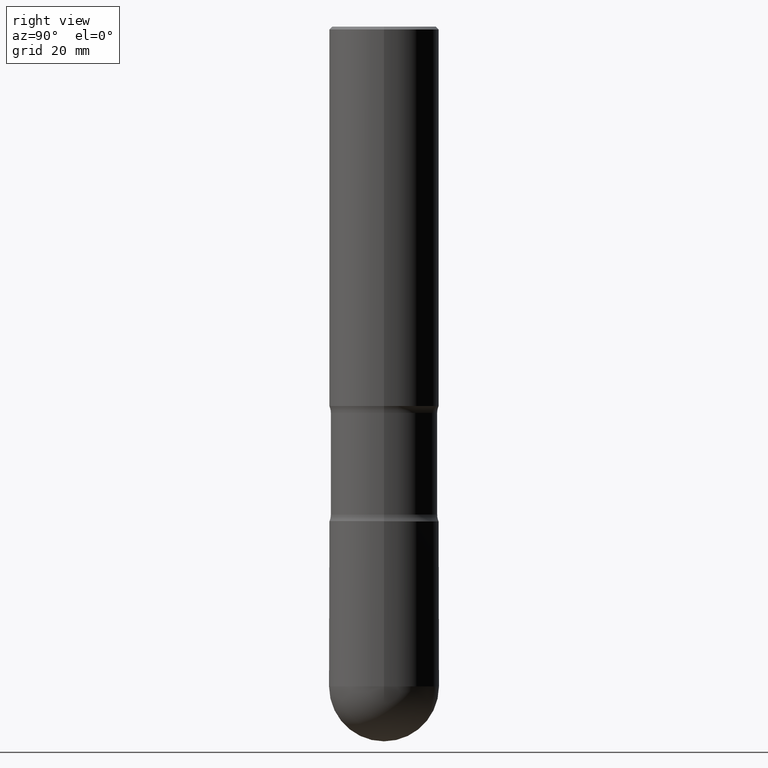
[diagram: clean part render]
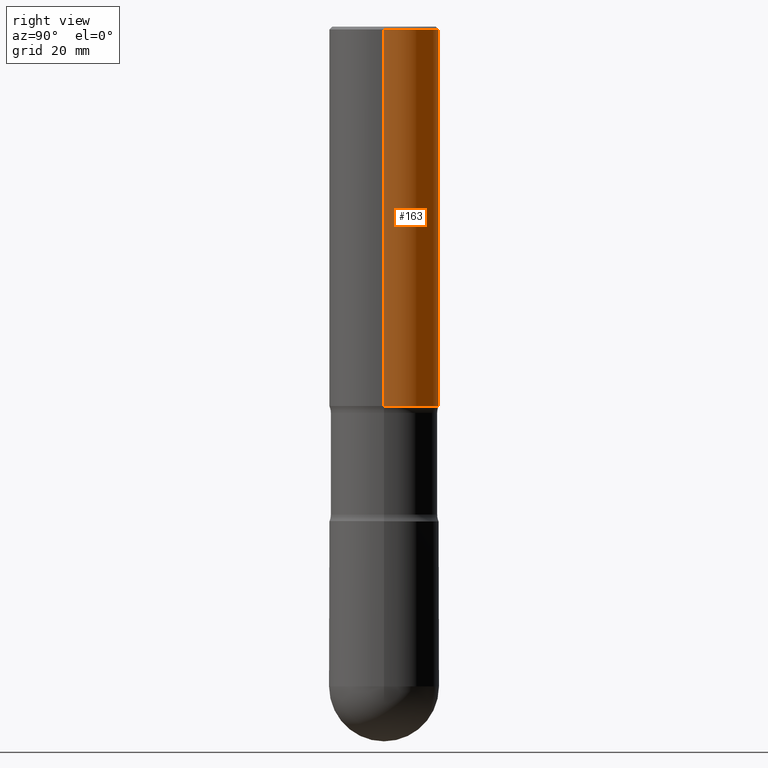
[diagram: same view with one face highlighted and labeled with its STEP entity id]
A machine part, right view. The second image highlights one B-rep face of the part: STEP entity #163.
In plain terms, the highlighted cylindrical surface (partial cylindrical patch) has radius 10 mm, axis along (0, -0, -1).
Its self-contained STEP definition (entity closure, byte-faithful):
#3 = FACE_OUTER_BOUND ( 'NONE', #158, .T. ) ;
#11 = EDGE_CURVE ( 'NONE', #360, #491, #340, .T. ) ;
#33 = CYLINDRICAL_SURFACE ( 'NONE', #324, 0.3936999999999998279 ) ;
#54 = CARTESIAN_POINT ( 'NONE',  ( -0.3936999999999996613, 2.679362779428216763E-15, -0.02000000000000033348 ) ) ;
#73 = EDGE_CURVE ( 'NONE', #423, #360, #276, .T. ) ;
#92 = AXIS2_PLACEMENT_3D ( 'NONE', #375, #462, #327 ) ;
#99 = EDGE_CURVE ( 'NONE', #270, #491, #459, .T. ) ;
#100 = LINE ( 'NONE', #401, #157 ) ;
#101 = ORIENTED_EDGE ( 'NONE', *, *, #99, .F. ) ;
#109 = CARTESIAN_POINT ( 'NONE',  ( 6.643116012001927000E-29, -9.484609056967409909E-15, -2.716500000000001691 ) ) ;
#120 = DIRECTION ( 'NONE',  ( -1.000000000000000000, 6.982962677686266711E-15, 0.000000000000000000 ) ) ;
#154 = CARTESIAN_POINT ( 'NONE',  ( 0.3937000000000000499, -7.478197403594786673E-15, -2.716500000000001691 ) ) ;
#157 = VECTOR ( 'NONE', #274, 39.37007874015748143 ) ;
#158 = EDGE_LOOP ( 'NONE', ( #168, #416, #101, #516 ) ) ;
#163 = ADVANCED_FACE ( 'NONE', ( #3 ), #33, .T. ) ;
#168 = ORIENTED_EDGE ( 'NONE', *, *, #73, .T. ) ;
#182 = DIRECTION ( 'NONE',  ( 2.445468806185136597E-29, -3.491481338843145583E-15, -1.000000000000000000 ) ) ;
#270 = VERTEX_POINT ( 'NONE', #345 ) ;
#274 = DIRECTION ( 'NONE',  ( 2.445468806185136877E-29, -3.491481338843145188E-15, -1.000000000000000000 ) ) ;
#276 = CIRCLE ( 'NONE', #92, 0.3936999999999996613 ) ;
#291 = CARTESIAN_POINT ( 'NONE',  ( 0.3936999999999998279, -1.507234388964556951E-14, -3.543300000000000338 ) ) ;
#318 = CARTESIAN_POINT ( 'NONE',  ( 0.3936999999999996613, -2.770807688499514156E-15, -0.02000000000000033348 ) ) ;
#324 = AXIS2_PLACEMENT_3D ( 'NONE', #352, #182, #120 ) ;
#327 = DIRECTION ( 'NONE',  ( -1.000000000000000000, 6.982962677686266711E-15, 0.000000000000000000 ) ) ;
#340 = LINE ( 'NONE', #291, #504 ) ;
#345 = CARTESIAN_POINT ( 'NONE',  ( -0.3937000000000000499, -6.735416650762325903E-15, -2.716500000000001691 ) ) ;
#352 = CARTESIAN_POINT ( 'NONE',  ( 8.665029620955795190E-29, -1.237136582792291865E-14, -3.543300000000000338 ) ) ;
#360 = VERTEX_POINT ( 'NONE', #318 ) ;
#375 = CARTESIAN_POINT ( 'NONE',  ( 4.890937612370354609E-31, -6.982962677686407473E-17, -0.02000000000000033348 ) ) ;
#401 = CARTESIAN_POINT ( 'NONE',  ( -0.3936999999999998279, -9.622173421717837012E-15, -3.543300000000000338 ) ) ;
#416 = ORIENTED_EDGE ( 'NONE', *, *, #11, .T. ) ;
#418 = AXIS2_PLACEMENT_3D ( 'NONE', #109, #464, #557 ) ;
#423 = VERTEX_POINT ( 'NONE', #54 ) ;
#459 = CIRCLE ( 'NONE', #418, 0.3937000000000000499 ) ;
#462 = DIRECTION ( 'NONE',  ( 2.445468806185136597E-29, -3.491481338843145583E-15, -1.000000000000000000 ) ) ;
#464 = DIRECTION ( 'NONE',  ( 2.445468806185136597E-29, -3.491481338843145583E-15, -1.000000000000000000 ) ) ;
#473 = EDGE_CURVE ( 'NONE', #423, #270, #100, .T. ) ;
#481 = DIRECTION ( 'NONE',  ( 2.445468806185136877E-29, -3.491481338843145188E-15, -1.000000000000000000 ) ) ;
#491 = VERTEX_POINT ( 'NONE', #154 ) ;
#504 = VECTOR ( 'NONE', #481, 39.37007874015748143 ) ;
#516 = ORIENTED_EDGE ( 'NONE', *, *, #473, .F. ) ;
#557 = DIRECTION ( 'NONE',  ( -1.000000000000000000, 6.982962677686267499E-15, 0.000000000000000000 ) ) ;